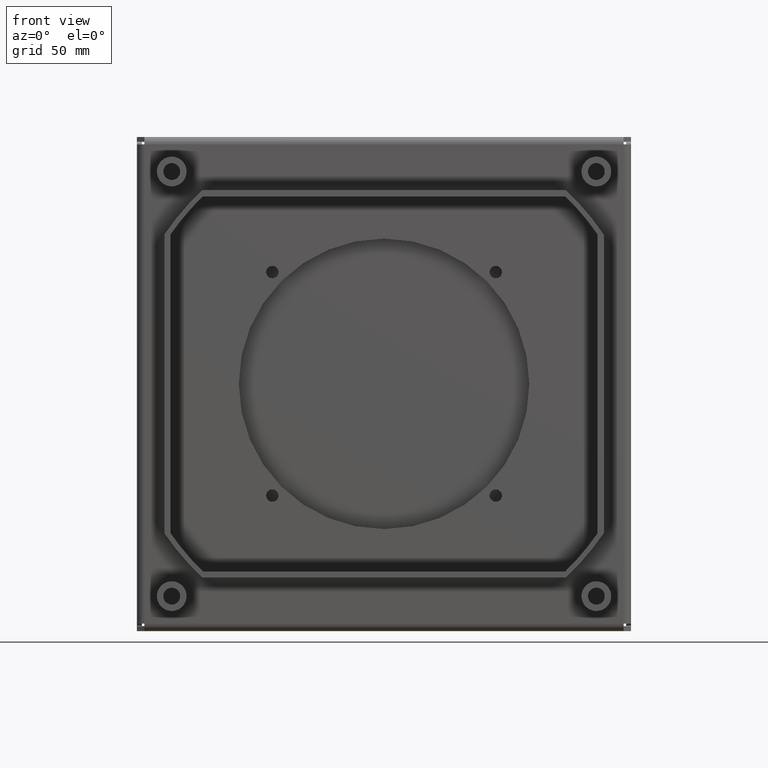
[diagram: clean part render]
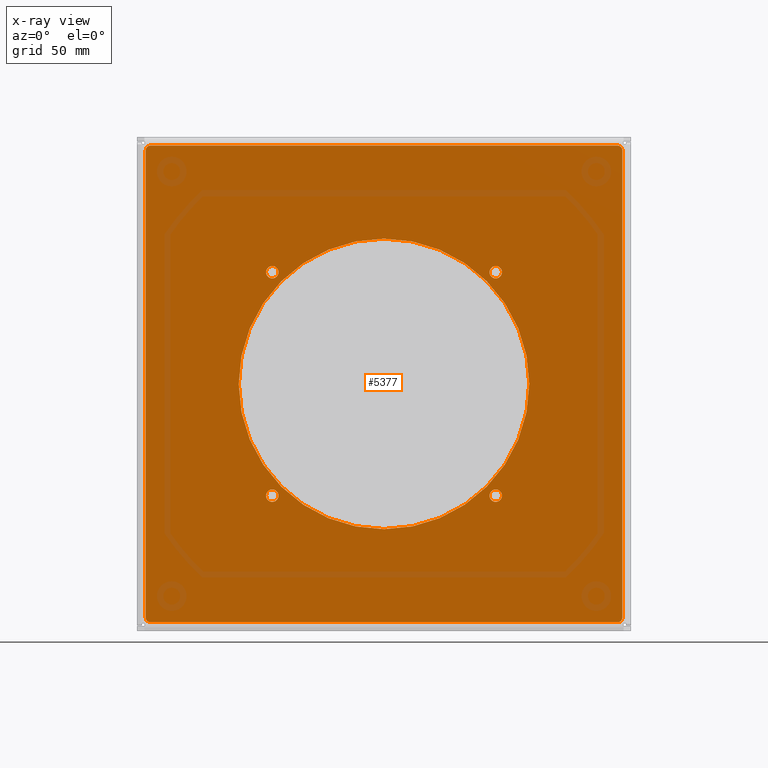
[diagram: x-ray — body ghosted, one internal face saturated and labeled with its STEP entity id]
A machine part, front view, then the same camera in x-ray: the body is ghosted and one INTERNAL B-rep face — a face not visible from any outside direction — is saturated and labeled: STEP entity #5377.
In plain terms, the highlighted planar face has unit normal (0, -1, 0).
Its self-contained STEP definition (entity closure, byte-faithful):
#5008=CARTESIAN_POINT('',(0.E0,0.E0,0.E0));
#5009=DIRECTION('',(0.E0,-1.E0,0.E0));
#5010=DIRECTION('',(1.E0,0.E0,0.E0));
#5011=AXIS2_PLACEMENT_3D('',#5008,#5009,#5010);
#5013=CARTESIAN_POINT('',(0.E0,0.E0,0.E0));
#5014=DIRECTION('',(0.E0,-1.E0,0.E0));
#5015=DIRECTION('',(-1.E0,0.E0,0.E0));
#5016=AXIS2_PLACEMENT_3D('',#5013,#5014,#5015);
#5018=CARTESIAN_POINT('',(-4.5E1,0.E0,-4.5E1));
#5019=DIRECTION('',(0.E0,-1.E0,0.E0));
#5020=DIRECTION('',(1.E0,0.E0,0.E0));
#5021=AXIS2_PLACEMENT_3D('',#5018,#5019,#5020);
#5023=CARTESIAN_POINT('',(-4.5E1,0.E0,-4.5E1));
#5024=DIRECTION('',(0.E0,-1.E0,0.E0));
#5025=DIRECTION('',(-1.E0,0.E0,0.E0));
#5026=AXIS2_PLACEMENT_3D('',#5023,#5024,#5025);
#5028=CARTESIAN_POINT('',(-4.5E1,0.E0,4.5E1));
#5029=DIRECTION('',(0.E0,-1.E0,0.E0));
#5030=DIRECTION('',(1.E0,0.E0,0.E0));
#5031=AXIS2_PLACEMENT_3D('',#5028,#5029,#5030);
#5033=CARTESIAN_POINT('',(-4.5E1,0.E0,4.5E1));
#5034=DIRECTION('',(0.E0,-1.E0,0.E0));
#5035=DIRECTION('',(-1.E0,0.E0,0.E0));
#5036=AXIS2_PLACEMENT_3D('',#5033,#5034,#5035);
#5038=CARTESIAN_POINT('',(4.5E1,0.E0,4.5E1));
#5039=DIRECTION('',(0.E0,-1.E0,0.E0));
#5040=DIRECTION('',(1.E0,0.E0,0.E0));
#5041=AXIS2_PLACEMENT_3D('',#5038,#5039,#5040);
#5043=CARTESIAN_POINT('',(4.5E1,0.E0,4.5E1));
#5044=DIRECTION('',(0.E0,-1.E0,0.E0));
#5045=DIRECTION('',(-1.E0,0.E0,0.E0));
#5046=AXIS2_PLACEMENT_3D('',#5043,#5044,#5045);
#5048=CARTESIAN_POINT('',(4.5E1,0.E0,-4.5E1));
#5049=DIRECTION('',(0.E0,-1.E0,0.E0));
#5050=DIRECTION('',(1.E0,0.E0,0.E0));
#5051=AXIS2_PLACEMENT_3D('',#5048,#5049,#5050);
#5053=CARTESIAN_POINT('',(4.5E1,0.E0,-4.5E1));
#5054=DIRECTION('',(0.E0,-1.E0,0.E0));
#5055=DIRECTION('',(-1.E0,0.E0,0.E0));
#5056=AXIS2_PLACEMENT_3D('',#5053,#5054,#5055);
#5058=CARTESIAN_POINT('',(-9.4E1,0.E0,-9.4E1));
#5059=DIRECTION('',(0.E0,1.E0,0.E0));
#5060=DIRECTION('',(0.E0,0.E0,-1.E0));
#5061=AXIS2_PLACEMENT_3D('',#5058,#5059,#5060);
#5063=DIRECTION('',(0.E0,0.E0,1.E0));
#5064=VECTOR('',#5063,1.88E2);
#5065=CARTESIAN_POINT('',(-9.6E1,0.E0,-9.4E1));
#5066=LINE('',#5065,#5064);
#5067=CARTESIAN_POINT('',(-9.4E1,0.E0,9.4E1));
#5068=DIRECTION('',(0.E0,1.E0,0.E0));
#5069=DIRECTION('',(-1.E0,0.E0,-2.060573933704E-13));
#5070=AXIS2_PLACEMENT_3D('',#5067,#5068,#5069);
#5072=DIRECTION('',(1.E0,0.E0,0.E0));
#5073=VECTOR('',#5072,1.88E2);
#5074=CARTESIAN_POINT('',(-9.4E1,0.E0,9.6E1));
#5075=LINE('',#5074,#5073);
#5076=CARTESIAN_POINT('',(9.4E1,0.E0,9.4E1));
#5077=DIRECTION('',(0.E0,1.E0,0.E0));
#5078=DIRECTION('',(0.E0,0.E0,1.E0));
#5079=AXIS2_PLACEMENT_3D('',#5076,#5077,#5078);
#5081=DIRECTION('',(0.E0,0.E0,-1.E0));
#5082=VECTOR('',#5081,1.88E2);
#5083=CARTESIAN_POINT('',(9.6E1,0.E0,9.4E1));
#5084=LINE('',#5083,#5082);
#5085=CARTESIAN_POINT('',(9.4E1,0.E0,-9.4E1));
#5086=DIRECTION('',(0.E0,1.E0,0.E0));
#5087=DIRECTION('',(1.E0,0.E0,0.E0));
#5088=AXIS2_PLACEMENT_3D('',#5085,#5086,#5087);
#5090=DIRECTION('',(-1.E0,0.E0,0.E0));
#5091=VECTOR('',#5090,1.88E2);
#5092=CARTESIAN_POINT('',(9.4E1,0.E0,-9.6E1));
#5093=LINE('',#5092,#5091);
#5252=CARTESIAN_POINT('',(5.85E1,0.E0,0.E0));
#5253=CARTESIAN_POINT('',(-5.85E1,0.E0,0.E0));
#5254=VERTEX_POINT('',#5252);
#5255=VERTEX_POINT('',#5253);
#5256=CARTESIAN_POINT('',(-4.25E1,0.E0,-4.5E1));
#5257=CARTESIAN_POINT('',(-4.75E1,0.E0,-4.5E1));
#5258=VERTEX_POINT('',#5256);
#5259=VERTEX_POINT('',#5257);
#5260=CARTESIAN_POINT('',(-4.25E1,0.E0,4.5E1));
#5261=CARTESIAN_POINT('',(-4.75E1,0.E0,4.5E1));
#5262=VERTEX_POINT('',#5260);
#5263=VERTEX_POINT('',#5261);
#5264=CARTESIAN_POINT('',(4.75E1,0.E0,4.5E1));
#5265=CARTESIAN_POINT('',(4.25E1,0.E0,4.5E1));
#5266=VERTEX_POINT('',#5264);
#5267=VERTEX_POINT('',#5265);
#5268=CARTESIAN_POINT('',(4.75E1,0.E0,-4.5E1));
#5269=CARTESIAN_POINT('',(4.25E1,0.E0,-4.5E1));
#5270=VERTEX_POINT('',#5268);
#5271=VERTEX_POINT('',#5269);
#5272=CARTESIAN_POINT('',(-9.4E1,0.E0,-9.6E1));
#5273=CARTESIAN_POINT('',(-9.6E1,0.E0,-9.4E1));
#5274=VERTEX_POINT('',#5272);
#5275=VERTEX_POINT('',#5273);
#5276=CARTESIAN_POINT('',(-9.6E1,0.E0,9.4E1));
#5277=VERTEX_POINT('',#5276);
#5278=CARTESIAN_POINT('',(-9.4E1,0.E0,9.6E1));
#5279=VERTEX_POINT('',#5278);
#5280=CARTESIAN_POINT('',(9.4E1,0.E0,9.6E1));
#5281=VERTEX_POINT('',#5280);
#5282=CARTESIAN_POINT('',(9.6E1,0.E0,9.4E1));
#5283=VERTEX_POINT('',#5282);
#5284=CARTESIAN_POINT('',(9.6E1,0.E0,-9.4E1));
#5285=VERTEX_POINT('',#5284);
#5286=CARTESIAN_POINT('',(9.4E1,0.E0,-9.6E1));
#5287=VERTEX_POINT('',#5286);
#5324=CARTESIAN_POINT('',(0.E0,0.E0,0.E0));
#5325=DIRECTION('',(0.E0,1.E0,0.E0));
#5326=DIRECTION('',(1.E0,0.E0,0.E0));
#5327=AXIS2_PLACEMENT_3D('',#5324,#5325,#5326);
#5328=PLANE('',#5327);
#5330=ORIENTED_EDGE('',*,*,#5329,.T.);
#5332=ORIENTED_EDGE('',*,*,#5331,.T.);
#5334=ORIENTED_EDGE('',*,*,#5333,.T.);
#5336=ORIENTED_EDGE('',*,*,#5335,.T.);
#5338=ORIENTED_EDGE('',*,*,#5337,.T.);
#5340=ORIENTED_EDGE('',*,*,#5339,.T.);
#5342=ORIENTED_EDGE('',*,*,#5341,.T.);
#5344=ORIENTED_EDGE('',*,*,#5343,.T.);
#5345=EDGE_LOOP('',(#5330,#5332,#5334,#5336,#5338,#5340,#5342,#5344));
#5346=FACE_OUTER_BOUND('',#5345,.F.);
#5348=ORIENTED_EDGE('',*,*,#5347,.T.);
#5350=ORIENTED_EDGE('',*,*,#5349,.T.);
#5351=EDGE_LOOP('',(#5348,#5350));
#5352=FACE_BOUND('',#5351,.F.);
#5354=ORIENTED_EDGE('',*,*,#5353,.T.);
#5356=ORIENTED_EDGE('',*,*,#5355,.T.);
#5357=EDGE_LOOP('',(#5354,#5356));
#5358=FACE_BOUND('',#5357,.F.);
#5360=ORIENTED_EDGE('',*,*,#5359,.T.);
#5362=ORIENTED_EDGE('',*,*,#5361,.T.);
#5363=EDGE_LOOP('',(#5360,#5362));
#5364=FACE_BOUND('',#5363,.F.);
#5366=ORIENTED_EDGE('',*,*,#5365,.T.);
#5368=ORIENTED_EDGE('',*,*,#5367,.T.);
#5369=EDGE_LOOP('',(#5366,#5368));
#5370=FACE_BOUND('',#5369,.F.);
#5372=ORIENTED_EDGE('',*,*,#5371,.T.);
#5374=ORIENTED_EDGE('',*,*,#5373,.T.);
#5375=EDGE_LOOP('',(#5372,#5374));
#5376=FACE_BOUND('',#5375,.F.);
#5012=CIRCLE('',#5011,5.85E1);
#5017=CIRCLE('',#5016,5.85E1);
#5022=CIRCLE('',#5021,2.5E0);
#5027=CIRCLE('',#5026,2.5E0);
#5032=CIRCLE('',#5031,2.5E0);
#5037=CIRCLE('',#5036,2.5E0);
#5042=CIRCLE('',#5041,2.5E0);
#5047=CIRCLE('',#5046,2.5E0);
#5052=CIRCLE('',#5051,2.5E0);
#5057=CIRCLE('',#5056,2.5E0);
#5062=CIRCLE('',#5061,2.E0);
#5071=CIRCLE('',#5070,2.E0);
#5080=CIRCLE('',#5079,2.E0);
#5089=CIRCLE('',#5088,2.E0);
#5329=EDGE_CURVE('',#5274,#5275,#5062,.T.);
#5331=EDGE_CURVE('',#5275,#5277,#5066,.T.);
#5333=EDGE_CURVE('',#5277,#5279,#5071,.T.);
#5335=EDGE_CURVE('',#5279,#5281,#5075,.T.);
#5337=EDGE_CURVE('',#5281,#5283,#5080,.T.);
#5339=EDGE_CURVE('',#5283,#5285,#5084,.T.);
#5341=EDGE_CURVE('',#5285,#5287,#5089,.T.);
#5343=EDGE_CURVE('',#5287,#5274,#5093,.T.);
#5347=EDGE_CURVE('',#5258,#5259,#5022,.T.);
#5349=EDGE_CURVE('',#5259,#5258,#5027,.T.);
#5353=EDGE_CURVE('',#5262,#5263,#5032,.T.);
#5355=EDGE_CURVE('',#5263,#5262,#5037,.T.);
#5359=EDGE_CURVE('',#5266,#5267,#5042,.T.);
#5361=EDGE_CURVE('',#5267,#5266,#5047,.T.);
#5365=EDGE_CURVE('',#5270,#5271,#5052,.T.);
#5367=EDGE_CURVE('',#5271,#5270,#5057,.T.);
#5371=EDGE_CURVE('',#5254,#5255,#5012,.T.);
#5373=EDGE_CURVE('',#5255,#5254,#5017,.T.);
#5377=ADVANCED_FACE('',(#5346,#5352,#5358,#5364,#5370,#5376),#5328,.F.);